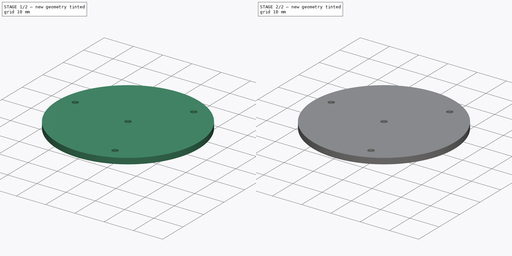
[diagram: build sequence overview — one tinted view per stage of 2, left to right]
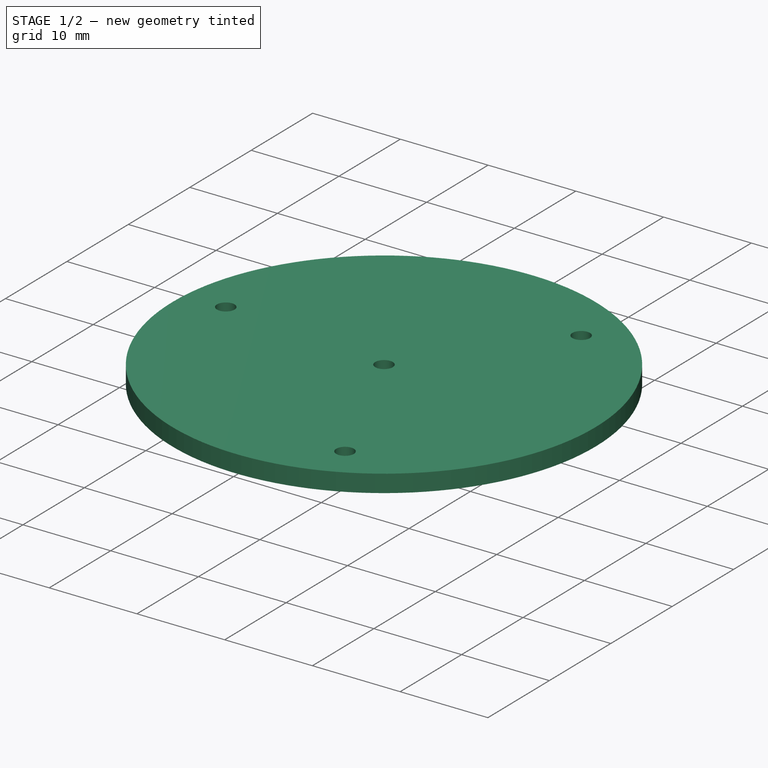
[diagram: stage 1 of 2 — iso view after this stage's code; geometry added in this stage tinted green]
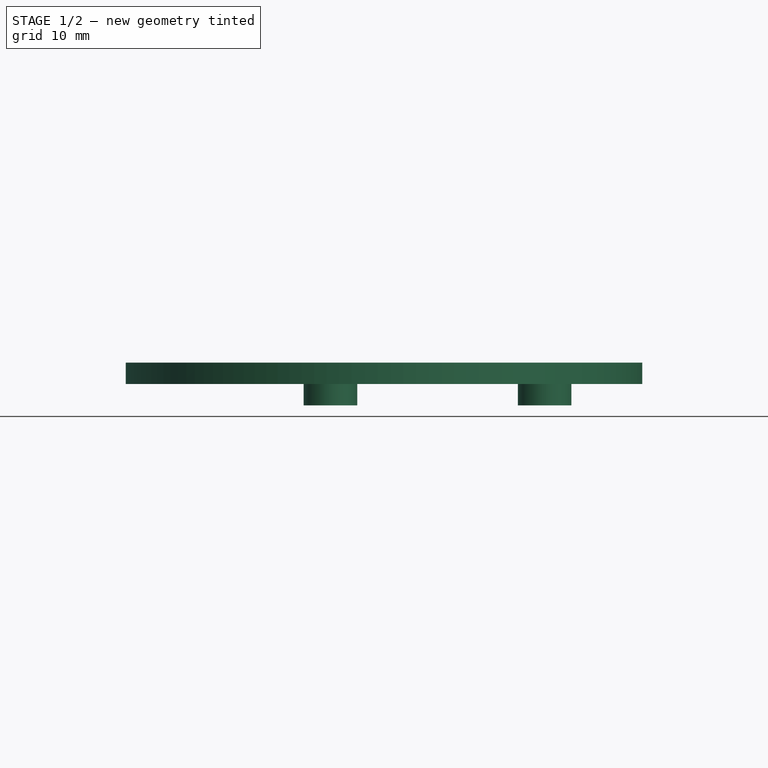
[diagram: stage 1 of 2 — front view after this stage's code; geometry added in this stage tinted green]
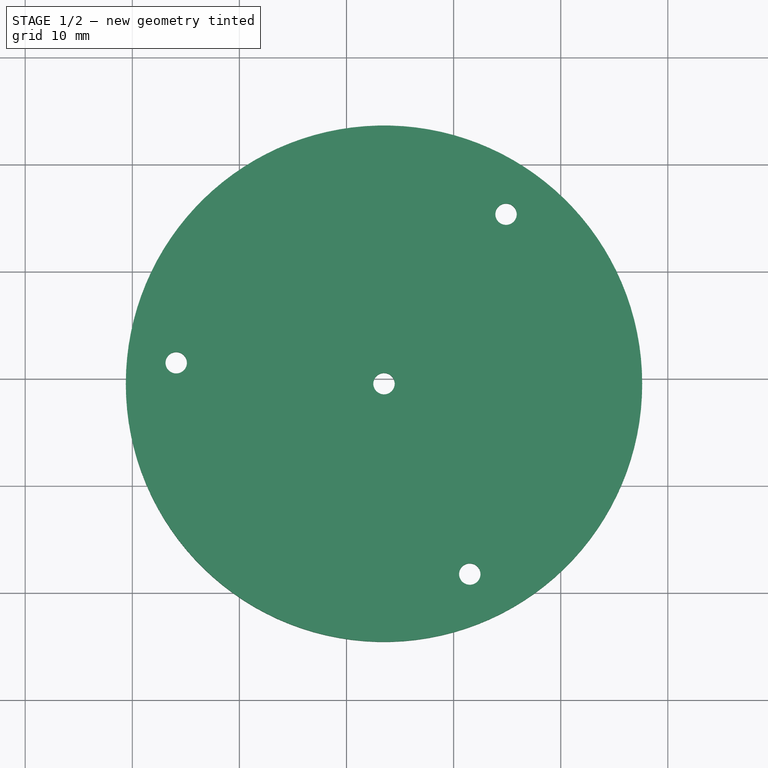
[diagram: stage 1 of 2 — top view after this stage's code; geometry added in this stage tinted green]
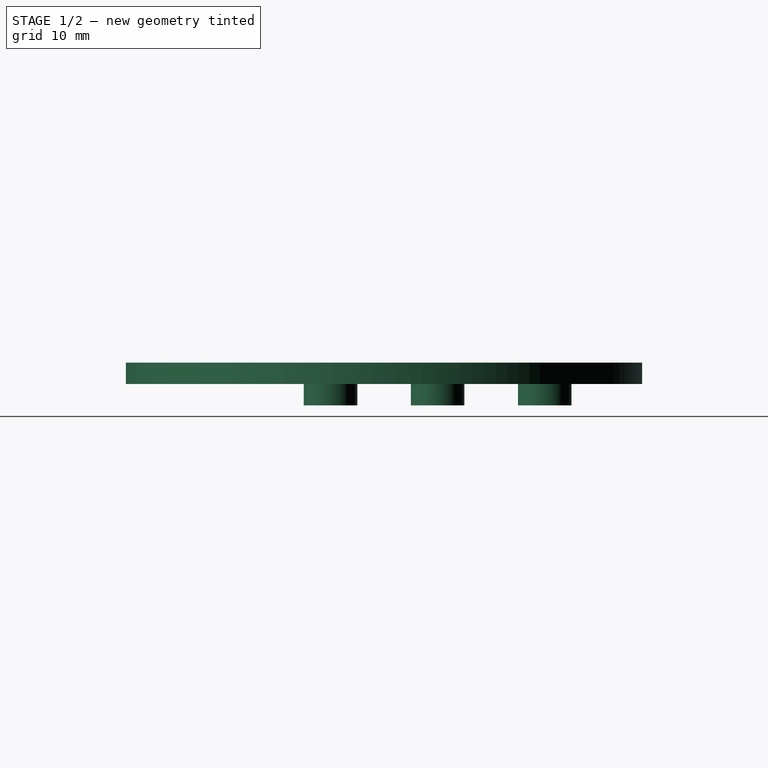
[diagram: stage 1 of 2 — right view after this stage's code; geometry added in this stage tinted green]
FCSTD DOCUMENT  (FreeCAD 0.19R24276 (Git))
Label: Bar_60x140__1_8mm_for-kern_endpoint_plate_rigth_part
License: All rights reserved
LicenseURL: http://en.wikipedia.org/wiki/All_rights_reserved
objects: Sketcher::SketchObject×2, PartDesign::Pad×2, PartDesign::Chamfer×1, PartDesign::Body×1
note: 9 computed .brp shape members not serialized (recipe doc carries the construction recipe); baked Part::Feature solids carry a one-line shape summary decoded from their .brp

FEATURE [Sketcher::SketchObject] Sketch
  FullyConstrained = false
  MapMode = 5
  Support = -> [XY_Plane]
  sketch-geometry (59):
    g0: LineSegment StartX=0 StartY=0 StartZ=0 EndX=120 EndY=0 EndZ=0
    g1: LineSegment StartX=120 StartY=0 StartZ=0 EndX=120 EndY=80 EndZ=0
    g2: LineSegment StartX=120 StartY=80 StartZ=0 EndX=0 EndY=80 EndZ=0
    g3: LineSegment StartX=0 StartY=80 StartZ=0 EndX=0 EndY=0 EndZ=0
    g4: LineSegment StartX=0 StartY=4.5 StartZ=0 EndX=120 EndY=4.5 EndZ=0
    g5: LineSegment StartX=0 StartY=24.5 StartZ=0 EndX=120 EndY=24.5 EndZ=0
    g6: LineSegment StartX=0 StartY=44.5 StartZ=0 EndX=120 EndY=44.5 EndZ=0
    g7: LineSegment StartX=0 StartY=64.5 StartZ=0 EndX=120 EndY=64.5 EndZ=0
    g8: LineSegment StartX=48.5 StartY=0 StartZ=0 EndX=48.5 EndY=4.5 EndZ=0
    g9: LineSegment StartX=68.5 StartY=0 StartZ=0 EndX=68.5 EndY=4.5 EndZ=0
    g10: LineSegment StartX=88.5 StartY=0 StartZ=0 EndX=88.5 EndY=4.5 EndZ=0
    g11: LineSegment StartX=108.5 StartY=0 StartZ=0 EndX=108.5 EndY=4.5 EndZ=0
    g12: LineSegment StartX=0 StartY=14.5 StartZ=0 EndX=120 EndY=14.5 EndZ=0
    g13: LineSegment StartX=0 StartY=34.5 StartZ=0 EndX=120 EndY=34.5 EndZ=0
    g14: LineSegment StartX=0 StartY=54.5 StartZ=0 EndX=120 EndY=54.5 EndZ=0
    g15: LineSegment StartX=0 StartY=74.5 StartZ=0 EndX=120 EndY=74.5 EndZ=0
    g16: LineSegment StartX=48.5 StartY=24.5 StartZ=0 EndX=48.5 EndY=80 EndZ=0
    g17: LineSegment StartX=68.5 StartY=14.5 StartZ=0 EndX=68.5 EndY=80 EndZ=0
    g18: LineSegment StartX=88.5 StartY=24.5 StartZ=0 EndX=88.5 EndY=80 EndZ=0
    g19: LineSegment StartX=108.5 StartY=14.5 StartZ=0 EndX=108.5 EndY=80 EndZ=0
    g20: Circle CenterX=28.5 CenterY=14.5 CenterZ=0 NormalX=0 NormalY=0 NormalZ=1 AngleXU=0 Radius=2.5
    g21: Circle CenterX=108.5 CenterY=14.5 CenterZ=0 NormalX=0 NormalY=0 NormalZ=1 AngleXU=0 Radius=2.5
    g22: Circle CenterX=8.5 CenterY=24.5 CenterZ=0 NormalX=0 NormalY=0 NormalZ=1 AngleXU=0 Radius=2.5
    g23: Circle CenterX=48.5 CenterY=24.5 CenterZ=0 NormalX=0 NormalY=0 NormalZ=1 AngleXU=0 Radius=2.5
    g24: Circle CenterX=88.5 CenterY=24.5 CenterZ=0 NormalX=0 NormalY=0 NormalZ=1 AngleXU=0 Radius=2.5
    g25: Circle CenterX=8.5 CenterY=44.5 CenterZ=0 NormalX=0 NormalY=0 NormalZ=1 AngleXU=0 Radius=2.5
    g26: Circle CenterX=48.5 CenterY=44.5 CenterZ=0 NormalX=0 NormalY=0 NormalZ=1 AngleXU=0 Radius=2.5
    g27: Circle CenterX=88.5 CenterY=44.5 CenterZ=0 NormalX=0 NormalY=0 NormalZ=1 AngleXU=0 Radius=2.5
    g28: Circle CenterX=28.5 CenterY=54.5 CenterZ=0 NormalX=0 NormalY=0 NormalZ=1 AngleXU=0 Radius=2.5
    g29: Circle CenterX=68.5 CenterY=54.5 CenterZ=0 NormalX=0 NormalY=0 NormalZ=1 AngleXU=0 Radius=2.5
    g30: Circle CenterX=108.5 CenterY=54.5 CenterZ=0 NormalX=0 NormalY=0 NormalZ=1 AngleXU=0 Radius=2.5
    g31: Circle CenterX=88.5 CenterY=64.5 CenterZ=0 NormalX=0 NormalY=0 NormalZ=1 AngleXU=0 Radius=2.5
    g32: Circle CenterX=48.5 CenterY=64.5 CenterZ=0 NormalX=0 NormalY=0 NormalZ=1 AngleXU=0 Radius=2.5
    g33: Circle CenterX=8.5 CenterY=64.5 CenterZ=0 NormalX=0 NormalY=0 NormalZ=1 AngleXU=0 Radius=2.5
    g34: Circle CenterX=28.5 CenterY=34.5 CenterZ=0 NormalX=0 NormalY=0 NormalZ=1 AngleXU=0 Radius=2.5
    g35: Circle CenterX=68.5 CenterY=34.5 CenterZ=0 NormalX=0 NormalY=0 NormalZ=1 AngleXU=0 Radius=2.5
    g36: Circle CenterX=108.5 CenterY=34.5 CenterZ=0 NormalX=0 NormalY=0 NormalZ=1 AngleXU=0 Radius=2.5
    g37: LineSegment StartX=28.5 StartY=74.5 StartZ=0 EndX=28.5 EndY=14.5 EndZ=0
    g38: LineSegment StartX=8.5 StartY=4.5 StartZ=0 EndX=8.5 EndY=24.5 EndZ=0
    g39: Circle CenterX=68.5 CenterY=14.5 CenterZ=0 NormalX=0 NormalY=0 NormalZ=1 AngleXU=0 Radius=2.5
    g40: LineSegment StartX=-1.5 StartY=9.5 StartZ=0 EndX=138.5 EndY=9.5 EndZ=0
    g41: LineSegment StartX=-1.5 StartY=69.5 StartZ=0 EndX=138.5 EndY=69.5 EndZ=0
    g42: LineSegment StartX=-1.5 StartY=69.5 StartZ=0 EndX=-1.5 EndY=9.5 EndZ=0
    g43: LineSegment StartX=138.5 StartY=69.5 StartZ=0 EndX=138.5 EndY=9.5 EndZ=0
    g44: Circle CenterX=128.5 CenterY=24.5 CenterZ=0 NormalX=0 NormalY=0 NormalZ=1 AngleXU=0 Radius=2.5
    g45: Circle CenterX=128.5 CenterY=44.5 CenterZ=0 NormalX=0 NormalY=0 NormalZ=1 AngleXU=0 Radius=2.5
    g46: Circle CenterX=128.5 CenterY=64.5 CenterZ=0 NormalX=0 NormalY=0 NormalZ=1 AngleXU=0 Radius=2.5
    g47: LineSegment StartX=124.893 StartY=55.3256 StartZ=0 EndX=94.0981 EndY=41.4538 EndZ=0
    g48: LineSegment StartX=94.0981 StartY=41.4538 StartZ=0 EndX=121.509 EndY=21.7206 EndZ=0
    g49: LineSegment StartX=121.509 StartY=21.7206 StartZ=0 EndX=124.893 EndY=55.3256 EndZ=0
    g50: Circle CenterX=113.5 CenterY=39.5 CenterZ=0 NormalX=0 NormalY=0 NormalZ=1 AngleXU=0 Radius=19.5
    g51: Circle CenterX=124.893 CenterY=55.3256 CenterZ=0 NormalX=0 NormalY=0 NormalZ=1 AngleXU=0 Radius=1
    g52: Circle CenterX=94.0981 CenterY=41.4538 CenterZ=0 NormalX=0 NormalY=0 NormalZ=1 AngleXU=0 Radius=1
    g53: Circle CenterX=121.509 CenterY=21.7206 CenterZ=0 NormalX=0 NormalY=0 NormalZ=1 AngleXU=0 Radius=1
    g54: Circle CenterX=113.5 CenterY=39.5 CenterZ=0 NormalX=0 NormalY=0 NormalZ=1 AngleXU=0 Radius=1
    g55: Circle CenterX=68.5 CenterY=39.5 CenterZ=0 NormalX=0 NormalY=0 NormalZ=1 AngleXU=0 Radius=1.5
    g56: LineSegment StartX=68.5 StartY=39.5 StartZ=0 EndX=23.5 EndY=39.5 EndZ=0
    g57: LineSegment StartX=68.5 StartY=39.5 StartZ=0 EndX=113.5 EndY=39.5 EndZ=0
    g58: Circle CenterX=113.5 CenterY=39.5 CenterZ=0 NormalX=0 NormalY=0 NormalZ=1 AngleXU=0 Radius=24.1072
  constraints (128):
    c: Coincident(g0,g1)
    c: Coincident(g1,g2)
    c: Coincident(g2,g3)
    c: Coincident(g3,g0)
    c: Horizontal(g0)
    c: Horizontal(g2)
    c: Vertical(g1)
    c: Vertical(g3)
    c: Coincident(g0,g-1)
    c: DistanceX(g0,g0) = 120
    c: DistanceY(g3,g3) = 80
    c: Horizontal(g4)
    c: PointOnObject(g4,g3)
    c: PointOnObject(g4,g1)
    c: Horizontal(g5)
    c: PointOnObject(g5,g3)
    c: PointOnObject(g5,g1)
    c: DistanceY(g4,g5) = 20
    c: Horizontal(g6)
    c: PointOnObject(g6,g1)
    c: PointOnObject(g6,g3)
    c: DistanceY(g5,g6) = 20
    c: Horizontal(g7)
    c: PointOnObject(g7,g1)
    c: PointOnObject(g7,g3)
    c: DistanceY(g6,g7) = 20
    c: Vertical(g8)
    c: Vertical(g9)
    c: Vertical(g10)
    c: Vertical(g11)
    c: PointOnObject(g8,g0)
    c: PointOnObject(g9,g0)
    c: PointOnObject(g10,g0)
    c: PointOnObject(g11,g0)
    c: PointOnObject(g19,g2)
    c: PointOnObject(g18,g2)
    c: PointOnObject(g17,g2)
    c: PointOnObject(g16,g2)
    c: DistanceX(g8,g9) = 20
    c: DistanceX(g9,g10) = 20
    c: DistanceX(g10,g11) = 20
    c: Horizontal(g12)
    c: Horizontal(g13)
    c: Horizontal(g14)
    c: Horizontal(g15)
    c: PointOnObject(g12,g3)
    c: PointOnObject(g13,g3)
    c: PointOnObject(g14,g3)
    c: PointOnObject(g15,g3)
    c: PointOnObject(g15,g1)
    c: PointOnObject(g14,g1)
    c: PointOnObject(g13,g1)
    c: PointOnObject(g12,g1)
    c: DistanceY(g0,g12) = 14.5
    c: DistanceY(g12,g13) = 20
    c: DistanceY(g13,g14) = 20
    c: DistanceY(g14,g15) = 20
    c: PointOnObject(g20,g12)
    c: PointOnObject(g8,g4)
    c: Tangent(g8,g16)
    c: PointOnObject(g9,g4)
    c: PointOnObject(g17,g12)
    c: Tangent(g9,g17)
    c: PointOnObject(g10,g4)
    c: Tangent(g10,g18)
    c: PointOnObject(g11,g4)
    c: PointOnObject(g19,g12)
    c: Tangent(g11,g19)
    c: Coincident(g21,g19)
    c: Diameter(g20) = 5
    c: PointOnObject(g16,g5)
    c: PointOnObject(g18,g5)
    c: Equal(g23,g24)
    c: Equal(g33,g28)
    c: Equal(g28,g32)
    c: Equal(g32,g31)
    c: Equal(g31,g30)
    c: Diameter(g28) = 5
    c: Equal(g31,g29)
    c: Equal(g26,g27)
    c: Diameter(g34) = 5
    c: Coincident(g37,g20)
    c: Vertical(g37)
    c: DistanceY(g0,g4) = 4.5
    c: Coincident(g38,g22)
    c: Vertical(g38)
    c: Coincident(g39,g17)
    c: Equal(g21,g39)
    c: Horizontal(g40)
    c: Horizontal(g41)
    c: Vertical(g42)
    c: DistanceX(g0,g38) = 8.5
    c: Coincident(g42,g40)
    c: Coincident(g41,g42)
    c: Vertical(g43)
    c: DistanceX(g40,g38) = 10
    c: Coincident(g40,g43)
    c: DistanceY(g40,g21) = 5
    c: Coincident(g41,g43)
    c: DistanceY(g40,g41) = 60
    c: Coincident(g47,g48)
    c: Coincident(g48,g49)
    c: Coincident(g49,g47)
    c: Equal(g47,g48)
    c: Equal(g47,g49)
    c: PointOnObject(g47,g50)
    c: PointOnObject(g48,g50)
    c: PointOnObject(g49,g50)
    c: Diameter(g50) = 39
    c: Coincident(g51,g47)
    c: Coincident(g52,g47)
    c: Coincident(g53,g48)
    c: Diameter(g51) = 2
    c: Equal(g51,g52)
    c: Equal(g51,g53)
    c: Coincident(g54,g50)
    c: Diameter(g54) = 2
    c: Symmetric(g40,g41,g55)
    c: Diameter(g55) = 3
    c: Coincident(g56,g55)
    c: Horizontal(g56)
    c: Coincident(g57,g55)
    c: Horizontal(g57)
    c: DistanceX(g57,g57) = 45
    c: DistanceX(g56,g56) = 45
    c: DistanceX(g41,g41) = 140
    c: Coincident(g57,g54)
    c: Coincident(g58,g54)
FEATURE [PartDesign::Pad] Pad
  Direction = (1,1,1)
  Length = 2
  Length2 = 100
  Profile = -> Sketch
  Type = 0
FEATURE [Sketcher::SketchObject] Sketch001
  FullyConstrained = true
  MapMode = 5
  Placement = pos=(0,0,2) rot=(0,0,1;0rad)
  Support = -> [Pad]
  sketch-geometry (4):
    g0: Circle CenterX=108.5 CenterY=34.51 CenterZ=0 NormalX=0 NormalY=0 NormalZ=1 AngleXU=0 Radius=2.5
    g1: Circle CenterX=108.5 CenterY=54.51 CenterZ=0 NormalX=0 NormalY=0 NormalZ=1 AngleXU=0 Radius=2.5
    g2: Circle CenterX=128.5 CenterY=44.51 CenterZ=0 NormalX=0 NormalY=0 NormalZ=1 AngleXU=0 Radius=2.5
    g3: LineSegment StartX=108.5 StartY=34.51 StartZ=0 EndX=108.5 EndY=54.51 EndZ=0
  constraints (11):
    c: Equal(g0,g1)
    c: Equal(g1,g2)
    c: Coincident(g3,g0)
    c: Coincident(g3,g1)
    c: Vertical(g3)
    c: DistanceX(g-1,g0) = 108.5
    c: DistanceY(g-1,g0) = 34.51
    c: Diameter(g0) = 5
    c: DistanceY(g3,g3) = 20
    c: DistanceY(g0,g2) = 10
    c: DistanceX(g0,g2) = 20
FEATURE [PartDesign::Pad] Pad001
  BaseFeature = -> Pad
  Direction = (1,1,1)
  Length = 4
  Length2 = 100
  Profile = -> Sketch001
  Reversed = true
  Type = 0
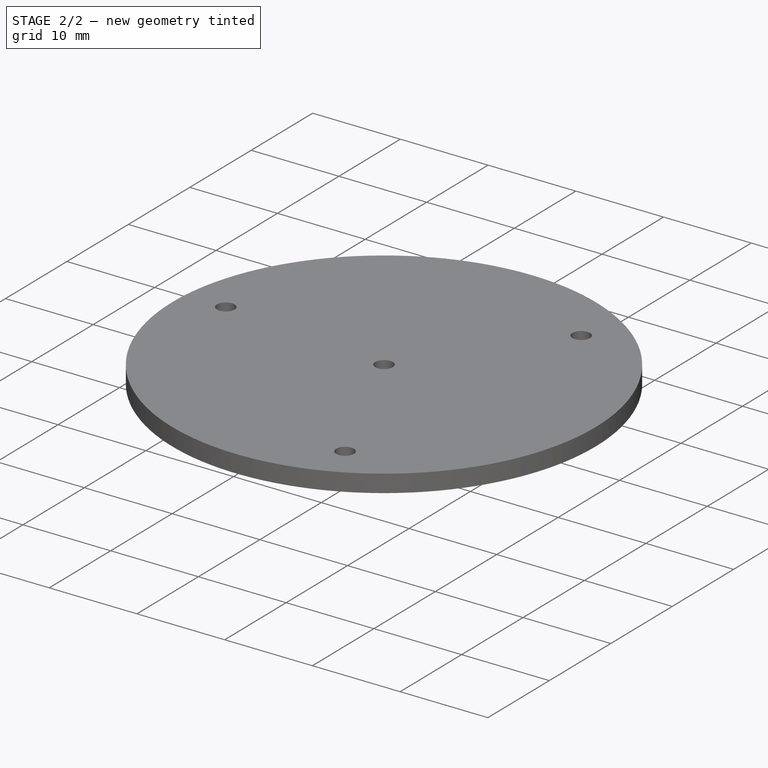
[diagram: stage 2 of 2 — iso view after this stage's code; geometry added in this stage tinted green]
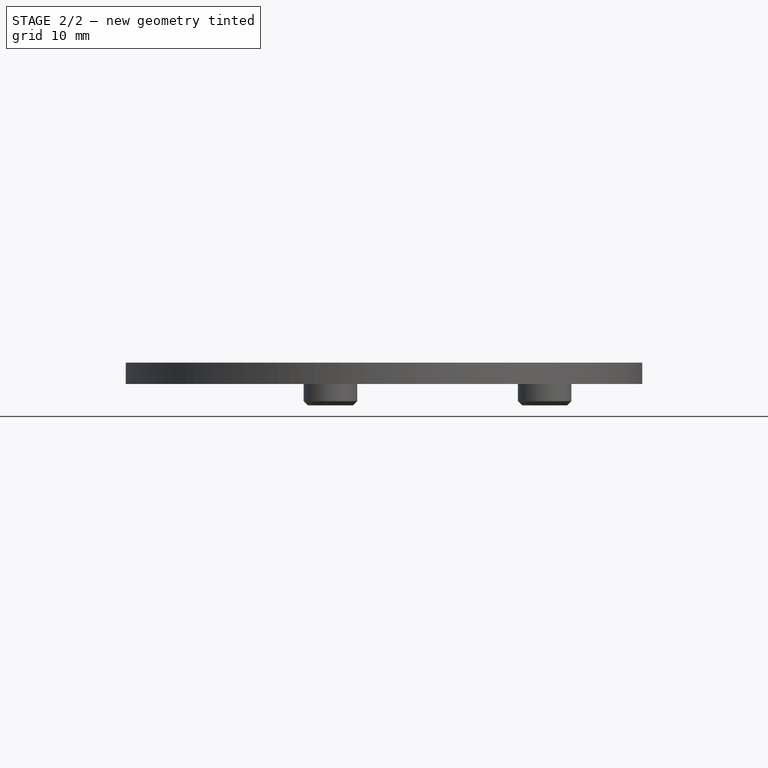
[diagram: stage 2 of 2 — front view after this stage's code; geometry added in this stage tinted green]
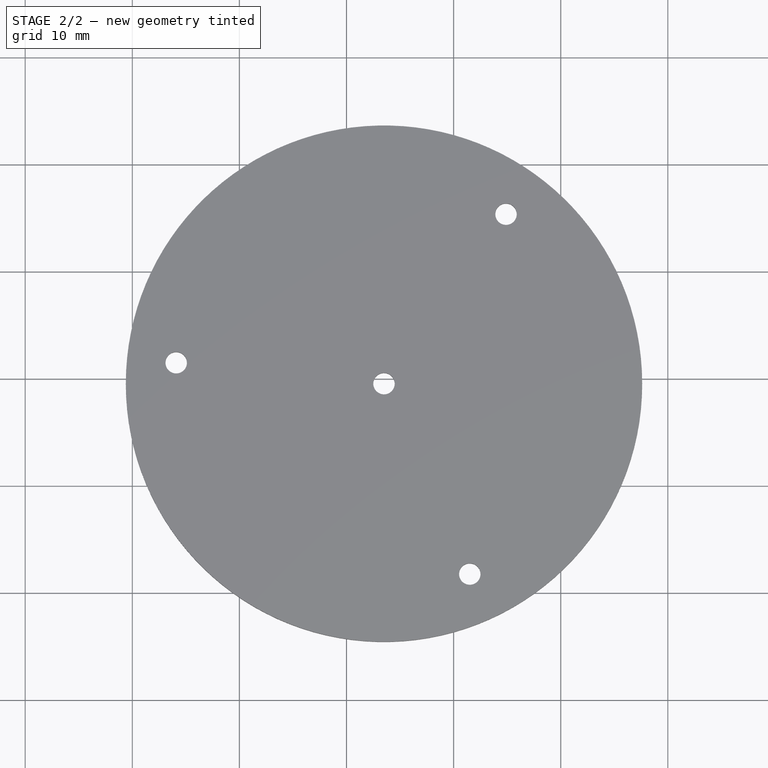
[diagram: stage 2 of 2 — top view after this stage's code; geometry added in this stage tinted green]
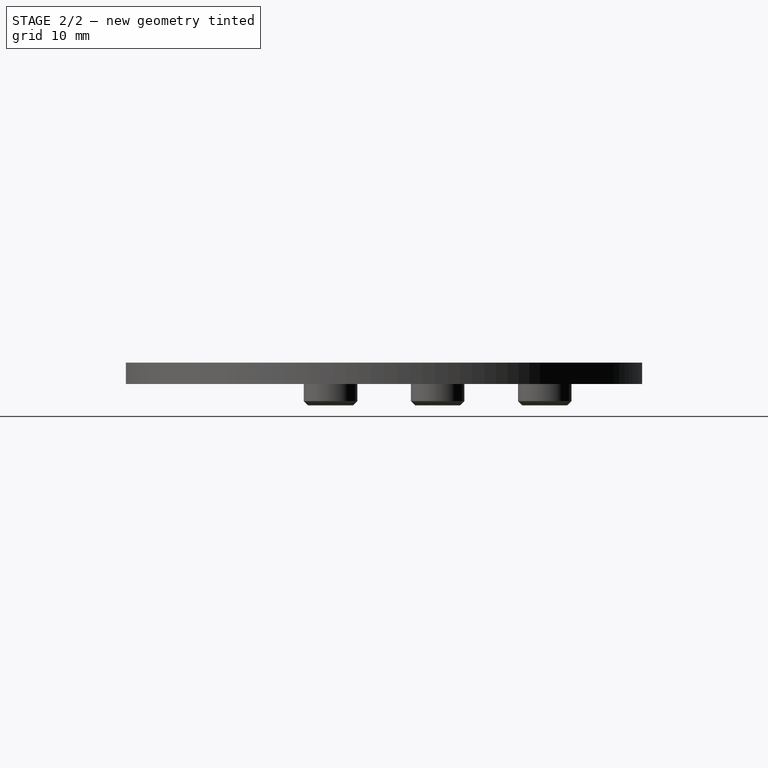
[diagram: stage 2 of 2 — right view after this stage's code; geometry added in this stage tinted green]
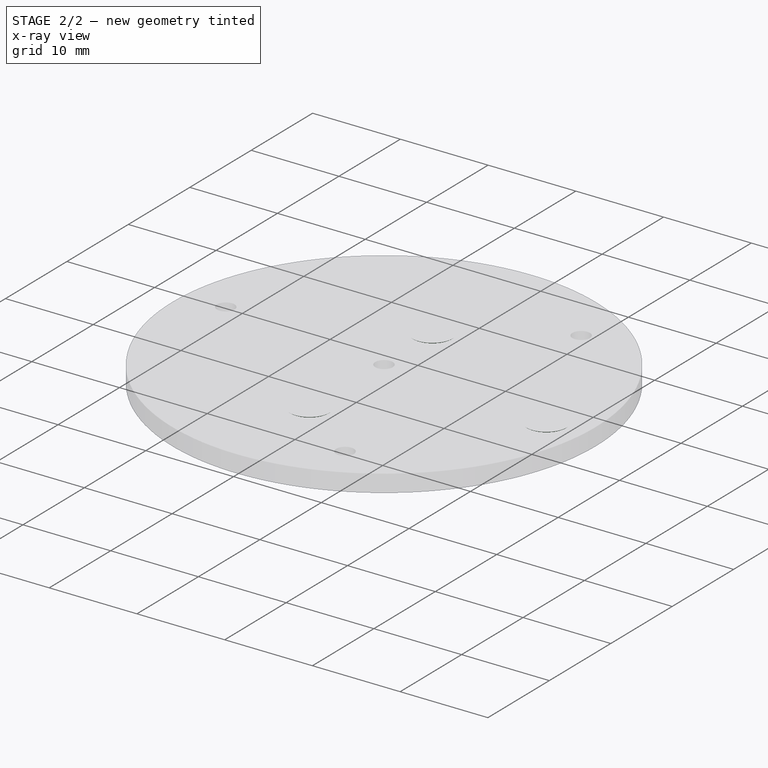
[diagram: stage 2 of 2 — x-ray composite at the iso view; earlier geometry ghosted, this stage's added geometry solid]
FEATURE [PartDesign::Chamfer] Chamfer
  Angle = 45
  Base = -> Pad001 [Edge19,Edge23,Edge26]
  BaseFeature = -> Pad001
  ChamferType = 0
  FlipDirection = false
  Size = 0.4
  Size2 = 1
  SupportTransform = false
FEATURE [PartDesign::Body] Body
  Group = -> [Sketch,Pad,Sketch001,Pad001,Chamfer]
  Origin = -> Origin
  Tip = -> Chamfer
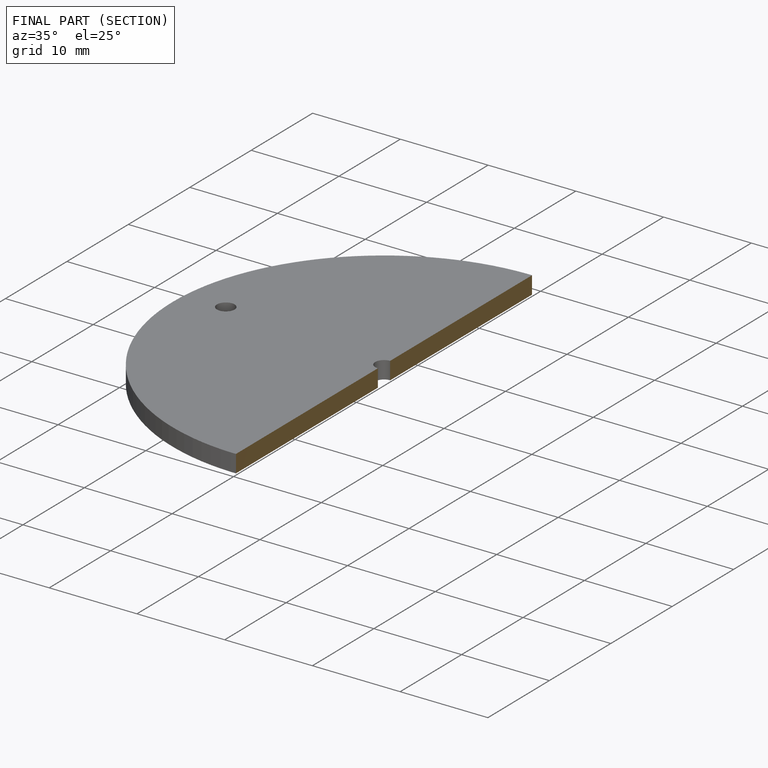
[diagram: finished part — half-section view (interior)]
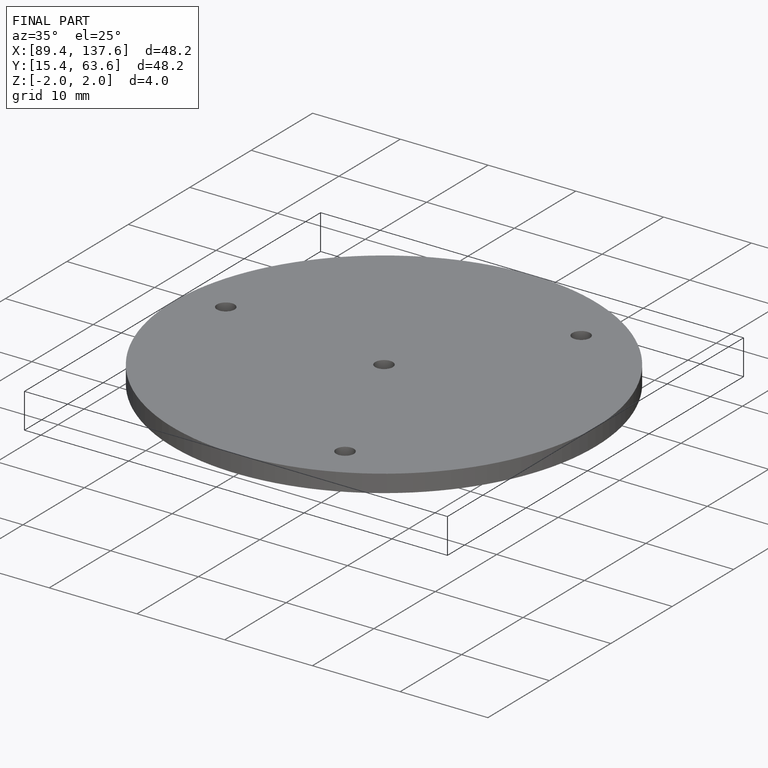
[diagram: finished part — iso view with bounding-box wireframe]
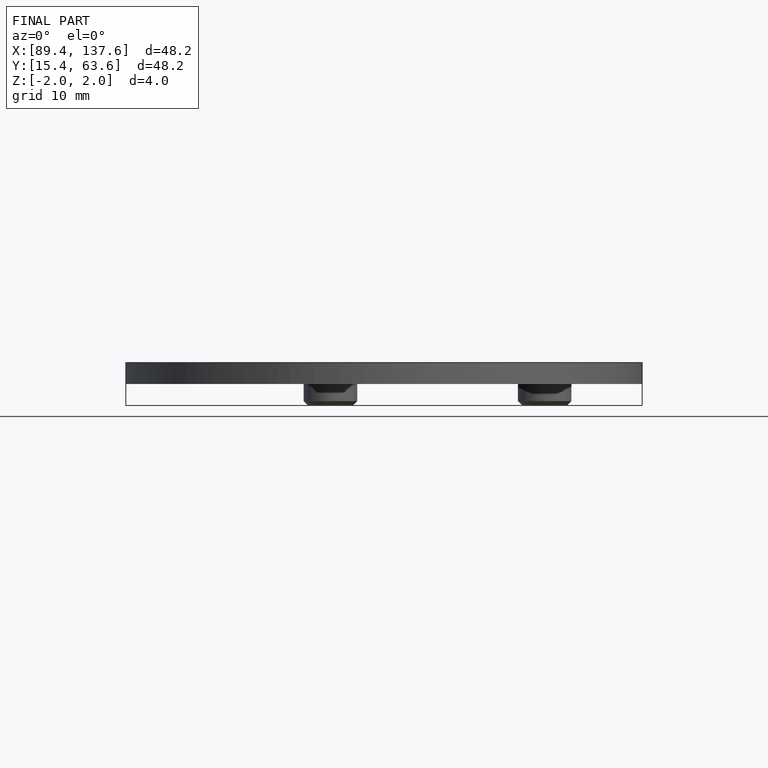
[diagram: finished part — front view with bounding-box wireframe]
